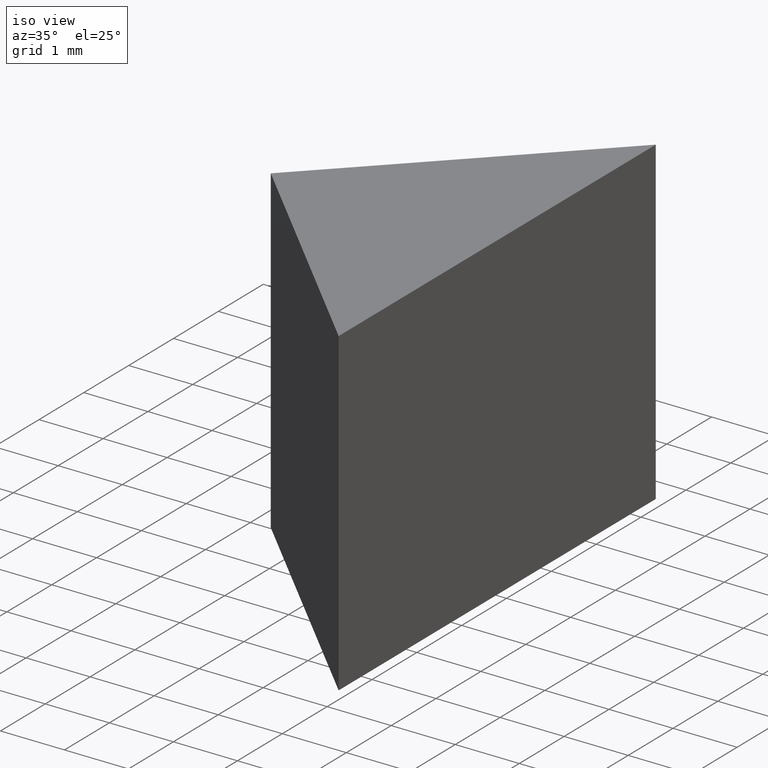
[diagram: clean part render]
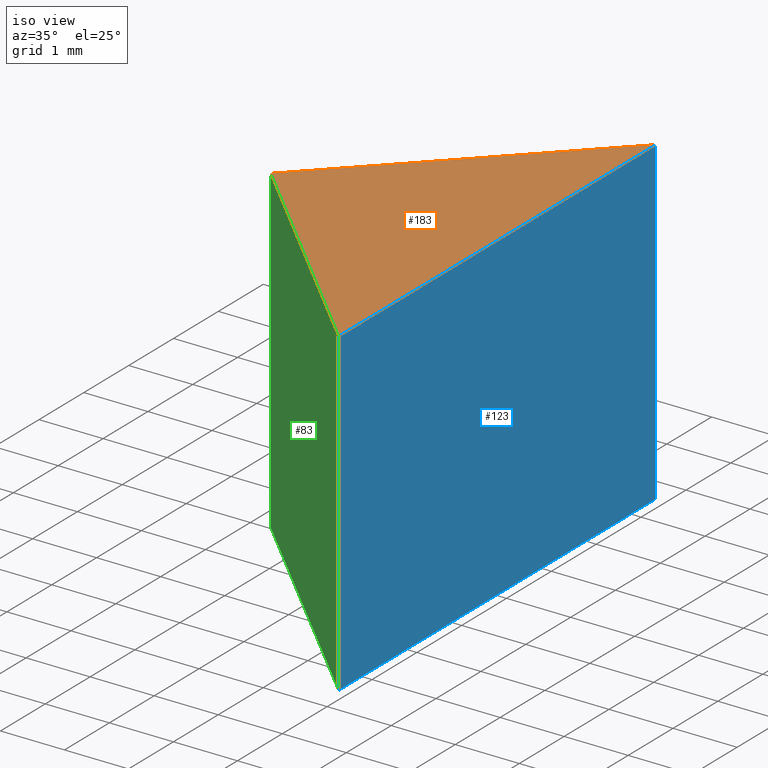
[diagram: same view with three faces highlighted in distinct colors, each labeled with its STEP entity id]
A machine part, iso view with three faces highlighted in distinct colors.
Their STEP definitions:

[orange] entity #183 — the highlighted planar face has unit normal (0, 0, 1).
#2 = CARTESIAN_POINT ( 'NONE',  ( 55.47666995259492495, 13.77569255283406235, 5.000000000000000000 ) ) ;
#7 = LINE ( 'NONE', #73, #91 ) ;
#18 = CARTESIAN_POINT ( 'NONE',  ( 55.47666995259492495, 13.77569255283406235, 5.000000000000000000 ) ) ;
#21 = EDGE_LOOP ( 'NONE', ( #62, #164, #202 ) ) ;
#24 = EDGE_CURVE ( 'NONE', #77, #75, #7, .T. ) ;
#31 = CARTESIAN_POINT ( 'NONE',  ( 59.01220385852766270, 17.31122645876678945, 5.000000000000000000 ) ) ;
#35 = DIRECTION ( 'NONE',  ( 0.000000000000000000, 0.000000000000000000, 1.000000000000000000 ) ) ;
#36 = CARTESIAN_POINT ( 'NONE',  ( 55.47666995259492495, 13.77569255283406235, 5.000000000000000000 ) ) ;
#51 = PLANE ( 'NONE',  #81 ) ;
#60 = VECTOR ( 'NONE', #82, 1000.000000000000000 ) ;
#62 = ORIENTED_EDGE ( 'NONE', *, *, #24, .T. ) ;
#73 = CARTESIAN_POINT ( 'NONE',  ( 59.01220385852765560, 10.24015864690132283, 5.000000000000000000 ) ) ;
#75 = VERTEX_POINT ( 'NONE', #31 ) ;
#77 = VERTEX_POINT ( 'NONE', #93 ) ;
#81 = AXIS2_PLACEMENT_3D ( 'NONE', #110, #35, #129 ) ;
#82 = DIRECTION ( 'NONE',  ( -0.7071067811865486830, -0.7071067811865464625, -0.000000000000000000 ) ) ;
#91 = VECTOR ( 'NONE', #132, 1000.000000000000000 ) ;
#93 = CARTESIAN_POINT ( 'NONE',  ( 59.01220385852765560, 10.24015864690132283, 5.000000000000000000 ) ) ;
#96 = FACE_OUTER_BOUND ( 'NONE', #21, .T. ) ;
#105 = VECTOR ( 'NONE', #171, 999.9999999999998863 ) ;
#110 = CARTESIAN_POINT ( 'NONE',  ( 0.000000000000000000, 0.000000000000000000, 5.000000000000000000 ) ) ;
#129 = DIRECTION ( 'NONE',  ( 1.000000000000000000, 0.000000000000000000, -0.000000000000000000 ) ) ;
#132 = DIRECTION ( 'NONE',  ( 1.962615573354719291E-15, 1.000000000000000000, -0.000000000000000000 ) ) ;
#138 = EDGE_CURVE ( 'NONE', #186, #77, #192, .T. ) ;
#164 = ORIENTED_EDGE ( 'NONE', *, *, #195, .T. ) ;
#171 = DIRECTION ( 'NONE',  ( 0.7071067811865467956, -0.7071067811865483499, 0.000000000000000000 ) ) ;
#172 = LINE ( 'NONE', #36, #60 ) ;
#183 = ADVANCED_FACE ( 'NONE', ( #96 ), #51, .T. ) ;
#186 = VERTEX_POINT ( 'NONE', #18 ) ;
#192 = LINE ( 'NONE', #2, #105 ) ;
#195 = EDGE_CURVE ( 'NONE', #75, #186, #172, .T. ) ;
#202 = ORIENTED_EDGE ( 'NONE', *, *, #138, .T. ) ;

[blue] entity #123 — the highlighted planar face has unit normal (-1, 0, 0).
#4 = CARTESIAN_POINT ( 'NONE',  ( 59.01220385852765560, 10.24015864690132283, -6.505213034913026604E-16 ) ) ;
#5 = VECTOR ( 'NONE', #137, 1000.000000000000000 ) ;
#6 = ORIENTED_EDGE ( 'NONE', *, *, #118, .F. ) ;
#7 = LINE ( 'NONE', #73, #91 ) ;
#10 = VECTOR ( 'NONE', #90, 1000.000000000000000 ) ;
#11 = PLANE ( 'NONE',  #27 ) ;
#24 = EDGE_CURVE ( 'NONE', #77, #75, #7, .T. ) ;
#27 = AXIS2_PLACEMENT_3D ( 'NONE', #76, #65, #122 ) ;
#28 = CARTESIAN_POINT ( 'NONE',  ( 59.01220385852766981, 17.31122645876679655, 5.000000000000000000 ) ) ;
#30 = EDGE_LOOP ( 'NONE', ( #6, #113, #43, #121 ) ) ;
#31 = CARTESIAN_POINT ( 'NONE',  ( 59.01220385852766270, 17.31122645876678945, 5.000000000000000000 ) ) ;
#43 = ORIENTED_EDGE ( 'NONE', *, *, #64, .F. ) ;
#54 = EDGE_CURVE ( 'NONE', #198, #149, #66, .T. ) ;
#63 = DIRECTION ( 'NONE',  ( -1.962615573354719291E-15, -1.000000000000000000, 0.000000000000000000 ) ) ;
#64 = EDGE_CURVE ( 'NONE', #149, #77, #139, .T. ) ;
#65 = DIRECTION ( 'NONE',  ( -1.000000000000000000, 1.962615573354719291E-15, 0.000000000000000000 ) ) ;
#66 = LINE ( 'NONE', #120, #182 ) ;
#73 = CARTESIAN_POINT ( 'NONE',  ( 59.01220385852765560, 10.24015864690132283, 5.000000000000000000 ) ) ;
#75 = VERTEX_POINT ( 'NONE', #31 ) ;
#76 = CARTESIAN_POINT ( 'NONE',  ( 59.01220385852765560, 10.24015864690132283, 5.000000000000000000 ) ) ;
#77 = VERTEX_POINT ( 'NONE', #93 ) ;
#90 = DIRECTION ( 'NONE',  ( -0.000000000000000000, -0.000000000000000000, -1.000000000000000000 ) ) ;
#91 = VECTOR ( 'NONE', #132, 1000.000000000000000 ) ;
#93 = CARTESIAN_POINT ( 'NONE',  ( 59.01220385852765560, 10.24015864690132283, 5.000000000000000000 ) ) ;
#108 = LINE ( 'NONE', #28, #10 ) ;
#113 = ORIENTED_EDGE ( 'NONE', *, *, #24, .F. ) ;
#118 = EDGE_CURVE ( 'NONE', #75, #198, #108, .T. ) ;
#120 = CARTESIAN_POINT ( 'NONE',  ( 59.01220385852765560, 10.24015864690132283, 0.000000000000000000 ) ) ;
#121 = ORIENTED_EDGE ( 'NONE', *, *, #54, .F. ) ;
#122 = DIRECTION ( 'NONE',  ( -1.962615573354719291E-15, -1.000000000000000000, 0.000000000000000000 ) ) ;
#123 = ADVANCED_FACE ( 'NONE', ( #153 ), #11, .F. ) ;
#132 = DIRECTION ( 'NONE',  ( 1.962615573354719291E-15, 1.000000000000000000, -0.000000000000000000 ) ) ;
#137 = DIRECTION ( 'NONE',  ( 0.000000000000000000, 0.000000000000000000, 1.000000000000000000 ) ) ;
#139 = LINE ( 'NONE', #184, #5 ) ;
#144 = CARTESIAN_POINT ( 'NONE',  ( 59.01220385852766270, 17.31122645876679300, -6.505213034913026604E-16 ) ) ;
#149 = VERTEX_POINT ( 'NONE', #4 ) ;
#153 = FACE_OUTER_BOUND ( 'NONE', #30, .T. ) ;
#182 = VECTOR ( 'NONE', #63, 1000.000000000000000 ) ;
#184 = CARTESIAN_POINT ( 'NONE',  ( 59.01220385852765560, 10.24015864690132283, 5.000000000000000000 ) ) ;
#198 = VERTEX_POINT ( 'NONE', #144 ) ;

[green] entity #83 — the highlighted planar face has unit normal (0.7071, 0.7071, -0).
#2 = CARTESIAN_POINT ( 'NONE',  ( 55.47666995259492495, 13.77569255283406235, 5.000000000000000000 ) ) ;
#4 = CARTESIAN_POINT ( 'NONE',  ( 59.01220385852765560, 10.24015864690132283, -6.505213034913026604E-16 ) ) ;
#5 = VECTOR ( 'NONE', #137, 1000.000000000000000 ) ;
#9 = VECTOR ( 'NONE', #17, 999.9999999999998863 ) ;
#12 = ORIENTED_EDGE ( 'NONE', *, *, #138, .F. ) ;
#13 = DIRECTION ( 'NONE',  ( -0.7071067811865467956, 0.7071067811865483499, 0.000000000000000000 ) ) ;
#17 = DIRECTION ( 'NONE',  ( 0.7071067811865467956, -0.7071067811865483499, 0.000000000000000000 ) ) ;
#18 = CARTESIAN_POINT ( 'NONE',  ( 55.47666995259492495, 13.77569255283406235, 5.000000000000000000 ) ) ;
#58 = ORIENTED_EDGE ( 'NONE', *, *, #64, .T. ) ;
#64 = EDGE_CURVE ( 'NONE', #149, #77, #139, .T. ) ;
#68 = CARTESIAN_POINT ( 'NONE',  ( 55.47666995259492495, 13.77569255283406235, 0.000000000000000000 ) ) ;
#77 = VERTEX_POINT ( 'NONE', #93 ) ;
#80 = CARTESIAN_POINT ( 'NONE',  ( 55.47666995259492495, 13.77569255283406235, 5.000000000000000000 ) ) ;
#83 = ADVANCED_FACE ( 'NONE', ( #185 ), #157, .F. ) ;
#92 = ORIENTED_EDGE ( 'NONE', *, *, #133, .T. ) ;
#93 = CARTESIAN_POINT ( 'NONE',  ( 59.01220385852765560, 10.24015864690132283, 5.000000000000000000 ) ) ;
#105 = VECTOR ( 'NONE', #171, 999.9999999999998863 ) ;
#106 = CARTESIAN_POINT ( 'NONE',  ( 55.47666995259492495, 13.77569255283406235, -9.757819552369539906E-16 ) ) ;
#107 = VERTEX_POINT ( 'NONE', #106 ) ;
#127 = LINE ( 'NONE', #80, #134 ) ;
#131 = ORIENTED_EDGE ( 'NONE', *, *, #154, .T. ) ;
#133 = EDGE_CURVE ( 'NONE', #186, #107, #127, .T. ) ;
#134 = VECTOR ( 'NONE', #162, 1000.000000000000000 ) ;
#137 = DIRECTION ( 'NONE',  ( 0.000000000000000000, 0.000000000000000000, 1.000000000000000000 ) ) ;
#138 = EDGE_CURVE ( 'NONE', #186, #77, #192, .T. ) ;
#139 = LINE ( 'NONE', #184, #5 ) ;
#142 = LINE ( 'NONE', #68, #9 ) ;
#149 = VERTEX_POINT ( 'NONE', #4 ) ;
#152 = AXIS2_PLACEMENT_3D ( 'NONE', #203, #167, #13 ) ;
#154 = EDGE_CURVE ( 'NONE', #107, #149, #142, .T. ) ;
#155 = EDGE_LOOP ( 'NONE', ( #58, #12, #92, #131 ) ) ;
#157 = PLANE ( 'NONE',  #152 ) ;
#162 = DIRECTION ( 'NONE',  ( 0.000000000000000000, -0.000000000000000000, -1.000000000000000000 ) ) ;
#167 = DIRECTION ( 'NONE',  ( 0.7071067811865483499, 0.7071067811865467956, -0.000000000000000000 ) ) ;
#171 = DIRECTION ( 'NONE',  ( 0.7071067811865467956, -0.7071067811865483499, 0.000000000000000000 ) ) ;
#184 = CARTESIAN_POINT ( 'NONE',  ( 59.01220385852765560, 10.24015864690132283, 5.000000000000000000 ) ) ;
#185 = FACE_OUTER_BOUND ( 'NONE', #155, .T. ) ;
#186 = VERTEX_POINT ( 'NONE', #18 ) ;
#192 = LINE ( 'NONE', #2, #105 ) ;
#203 = CARTESIAN_POINT ( 'NONE',  ( 55.47666995259492495, 13.77569255283406235, 5.000000000000000000 ) ) ;